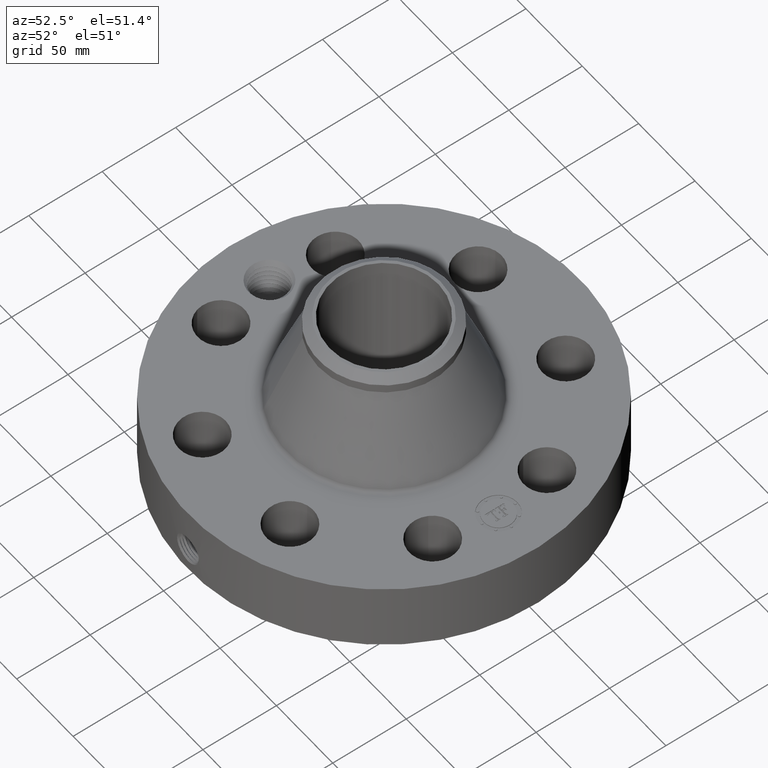
[diagram: clean part render]
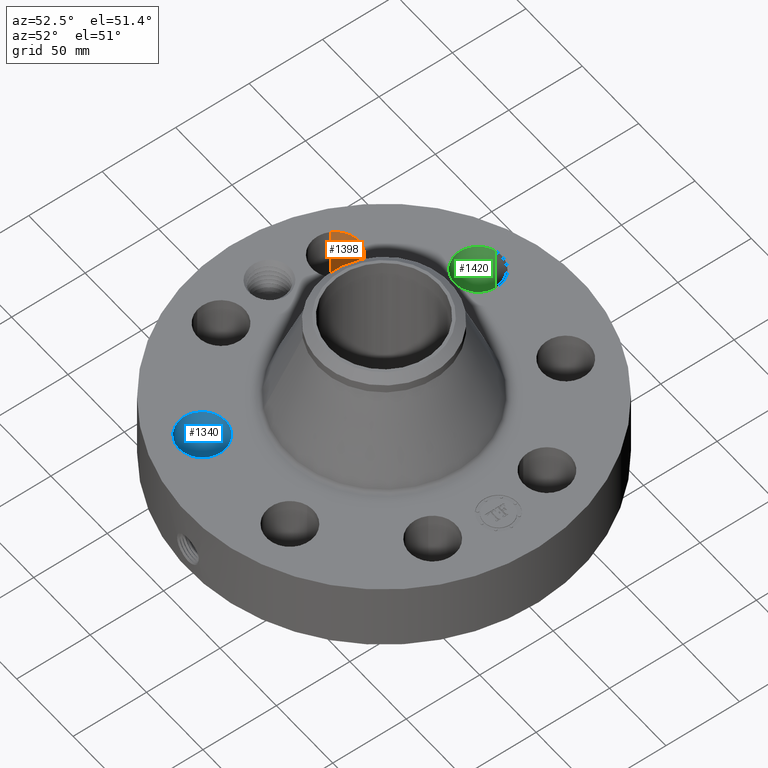
[diagram: same view with three faces highlighted in distinct colors, each labeled with its STEP entity id]
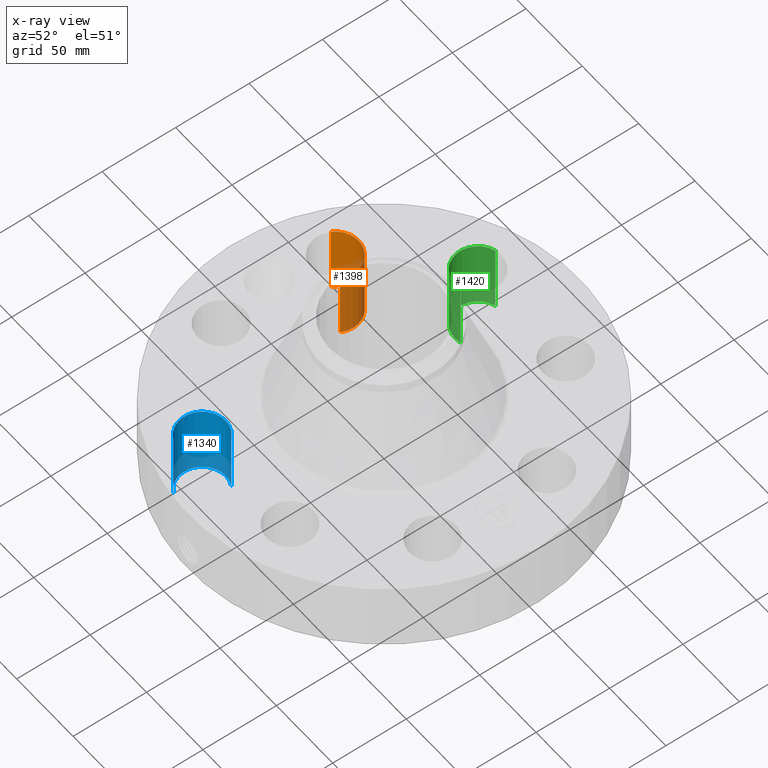
[diagram: x-ray of the same camera — body ghosted, the three highlighted faces saturated]
A machine part, auxiliary view with three faces highlighted in distinct colors.
The next image is the same camera in x-ray (body ghosted, the three faces saturated) — at least one of them is partly hidden behind the body in this view.
Their STEP definitions:

[orange] entity #1398 — the highlighted cylindrical surface (edge-blend (fillet) strip) has radius 15.875 mm, axis along (-0, 0, -1).
#330=AXIS2_PLACEMENT_3D('Circle Axis2P3D',#328,#329,$) ;
#645=AXIS2_PLACEMENT_3D('Circle Axis2P3D',#643,#644,$) ;
#1373=AXIS2_PLACEMENT_3D('Cylinder Axis2P3D',#1370,#1371,#1372) ;
#323=CARTESIAN_POINT('Vertex',(-3.14702902888,1.23109276784,0.250000000001)) ;
#325=CARTESIAN_POINT('Vertex',(-4.24400723124,1.8303746911,0.250000000001)) ;
#328=CARTESIAN_POINT('Axis2P3D Location',(-3.69551813006,1.53073372947,0.250000000001)) ;
#643=CARTESIAN_POINT('Axis2P3D Location',(-3.69551813006,1.53073372947,2.13000000001)) ;
#647=CARTESIAN_POINT('Vertex',(-4.24400723124,1.8303746911,2.13000000001)) ;
#649=CARTESIAN_POINT('Vertex',(-3.14702902888,1.23109276784,2.13000000001)) ;
#1370=CARTESIAN_POINT('Axis2P3D Location',(-3.69551813006,1.53073372947,2.12606299213)) ;
#1375=CARTESIAN_POINT('Line Origine',(-3.14702902888,1.23109276784,1.19)) ;
#1380=CARTESIAN_POINT('Line Origine',(-4.24400723124,1.8303746911,1.19)) ;
#329=DIRECTION('Axis2P3D Direction',(0.,0.,-0.0393700787402)) ;
#644=DIRECTION('Axis2P3D Direction',(0.,0.,-0.0393700787402)) ;
#1371=DIRECTION('Axis2P3D Direction',(-0.,0.,-0.0393700787402)) ;
#1372=DIRECTION('Axis2P3D XDirection',(-0.0345504945626,0.0188750212049,0.)) ;
#1376=DIRECTION('Vector Direction',(0.,0.,-0.0393700787402)) ;
#1381=DIRECTION('Vector Direction',(0.,0.,-0.0393700787402)) ;
#1377=VECTOR('Line Direction',#1376,0.0393700787402) ;
#1382=VECTOR('Line Direction',#1381,0.0393700787402) ;
#1393=ORIENTED_EDGE('',*,*,#1384,.F.) ;
#1394=ORIENTED_EDGE('',*,*,#332,.T.) ;
#1395=ORIENTED_EDGE('',*,*,#1379,.T.) ;
#1396=ORIENTED_EDGE('',*,*,#651,.F.) ;
#1398=ADVANCED_FACE('PartBody',(#1397),#1374,.F.) ;
#331=CIRCLE('generated circle',#330,0.625000000002) ;
#646=CIRCLE('generated circle',#645,0.625000000002) ;
#1374=CYLINDRICAL_SURFACE('generated cylinder',#1373,0.625000000002) ;
#332=EDGE_CURVE('',#326,#324,#331,.T.) ;
#651=EDGE_CURVE('',#648,#650,#646,.T.) ;
#1379=EDGE_CURVE('',#324,#650,#1378,.F.) ;
#1384=EDGE_CURVE('',#326,#648,#1383,.F.) ;
#1392=EDGE_LOOP('',(#1393,#1394,#1395,#1396)) ;
#1397=FACE_OUTER_BOUND('',#1392,.T.) ;
#1378=LINE('Line',#1375,#1377) ;
#1383=LINE('Line',#1380,#1382) ;
#324=VERTEX_POINT('',#323) ;
#326=VERTEX_POINT('',#325) ;
#648=VERTEX_POINT('',#647) ;
#650=VERTEX_POINT('',#649) ;

[blue] entity #1340 — the highlighted cylindrical surface (edge-blend (fillet) strip) has radius 15.875 mm, axis along (0, -0, -1).
#294=AXIS2_PLACEMENT_3D('Circle Axis2P3D',#292,#293,$) ;
#609=AXIS2_PLACEMENT_3D('Circle Axis2P3D',#607,#608,$) ;
#1315=AXIS2_PLACEMENT_3D('Cylinder Axis2P3D',#1312,#1313,#1314) ;
#287=CARTESIAN_POINT('Vertex',(-1.23109276784,-3.14702902888,0.250000000001)) ;
#289=CARTESIAN_POINT('Vertex',(-1.8303746911,-4.24400723124,0.250000000001)) ;
#292=CARTESIAN_POINT('Axis2P3D Location',(-1.53073372947,-3.69551813006,0.250000000001)) ;
#607=CARTESIAN_POINT('Axis2P3D Location',(-1.53073372947,-3.69551813006,2.13000000001)) ;
#611=CARTESIAN_POINT('Vertex',(-1.8303746911,-4.24400723124,2.13000000001)) ;
#613=CARTESIAN_POINT('Vertex',(-1.23109276784,-3.14702902888,2.13000000001)) ;
#1312=CARTESIAN_POINT('Axis2P3D Location',(-1.53073372947,-3.69551813006,2.12606299213)) ;
#1317=CARTESIAN_POINT('Line Origine',(-1.23109276784,-3.14702902888,1.19)) ;
#1322=CARTESIAN_POINT('Line Origine',(-1.8303746911,-4.24400723124,1.19)) ;
#293=DIRECTION('Axis2P3D Direction',(0.,0.,-0.0393700787402)) ;
#608=DIRECTION('Axis2P3D Direction',(0.,0.,-0.0393700787402)) ;
#1313=DIRECTION('Axis2P3D Direction',(0.,-0.,-0.0393700787402)) ;
#1314=DIRECTION('Axis2P3D XDirection',(-0.0188750212049,-0.0345504945626,0.)) ;
#1318=DIRECTION('Vector Direction',(0.,0.,-0.0393700787402)) ;
#1323=DIRECTION('Vector Direction',(0.,0.,-0.0393700787402)) ;
#1319=VECTOR('Line Direction',#1318,0.0393700787402) ;
#1324=VECTOR('Line Direction',#1323,0.0393700787402) ;
#1335=ORIENTED_EDGE('',*,*,#1326,.F.) ;
#1336=ORIENTED_EDGE('',*,*,#296,.T.) ;
#1337=ORIENTED_EDGE('',*,*,#1321,.T.) ;
#1338=ORIENTED_EDGE('',*,*,#615,.F.) ;
#1340=ADVANCED_FACE('PartBody',(#1339),#1316,.F.) ;
#295=CIRCLE('generated circle',#294,0.625000000002) ;
#610=CIRCLE('generated circle',#609,0.625000000002) ;
#1316=CYLINDRICAL_SURFACE('generated cylinder',#1315,0.625000000002) ;
#296=EDGE_CURVE('',#290,#288,#295,.T.) ;
#615=EDGE_CURVE('',#612,#614,#610,.T.) ;
#1321=EDGE_CURVE('',#288,#614,#1320,.F.) ;
#1326=EDGE_CURVE('',#290,#612,#1325,.F.) ;
#1334=EDGE_LOOP('',(#1335,#1336,#1337,#1338)) ;
#1339=FACE_OUTER_BOUND('',#1334,.T.) ;
#1320=LINE('Line',#1317,#1319) ;
#1325=LINE('Line',#1322,#1324) ;
#288=VERTEX_POINT('',#287) ;
#290=VERTEX_POINT('',#289) ;
#612=VERTEX_POINT('',#611) ;
#614=VERTEX_POINT('',#613) ;

[green] entity #1420 — the highlighted cylindrical surface (edge-blend (fillet) strip) has radius 15.875 mm, axis along (0, 0, -1).
#339=AXIS2_PLACEMENT_3D('Circle Axis2P3D',#337,#338,$) ;
#672=AXIS2_PLACEMENT_3D('Circle Axis2P3D',#670,#671,$) ;
#1402=AXIS2_PLACEMENT_3D('Cylinder Axis2P3D',#1399,#1400,#1401) ;
#337=CARTESIAN_POINT('Axis2P3D Location',(-1.53073372947,3.69551813006,0.250000000001)) ;
#341=CARTESIAN_POINT('Vertex',(-1.3547715225,3.09579961132,0.250000000001)) ;
#343=CARTESIAN_POINT('Vertex',(-1.70669593643,4.2952366488,0.250000000001)) ;
#665=CARTESIAN_POINT('Vertex',(-1.70669593643,4.2952366488,2.13000000001)) ;
#667=CARTESIAN_POINT('Vertex',(-1.3547715225,3.09579961132,2.13000000001)) ;
#670=CARTESIAN_POINT('Axis2P3D Location',(-1.53073372947,3.69551813006,2.13000000001)) ;
#1399=CARTESIAN_POINT('Axis2P3D Location',(-1.53073372947,3.69551813006,2.12606299213)) ;
#1404=CARTESIAN_POINT('Line Origine',(-1.3547715225,3.09579961132,1.19)) ;
#1409=CARTESIAN_POINT('Line Origine',(-1.70669593643,4.2952366488,1.19)) ;
#338=DIRECTION('Axis2P3D Direction',(0.,0.,-0.0393700787402)) ;
#671=DIRECTION('Axis2P3D Direction',(0.,0.,-0.0393700787402)) ;
#1400=DIRECTION('Axis2P3D Direction',(0.,0.,-0.0393700787402)) ;
#1401=DIRECTION('Axis2P3D XDirection',(-0.0110842335096,0.0377775444876,0.)) ;
#1405=DIRECTION('Vector Direction',(0.,0.,-0.0393700787402)) ;
#1410=DIRECTION('Vector Direction',(0.,0.,-0.0393700787402)) ;
#1406=VECTOR('Line Direction',#1405,0.0393700787402) ;
#1411=VECTOR('Line Direction',#1410,0.0393700787402) ;
#1415=ORIENTED_EDGE('',*,*,#1408,.F.) ;
#1416=ORIENTED_EDGE('',*,*,#345,.T.) ;
#1417=ORIENTED_EDGE('',*,*,#1413,.T.) ;
#1418=ORIENTED_EDGE('',*,*,#674,.F.) ;
#1420=ADVANCED_FACE('PartBody',(#1419),#1403,.F.) ;
#340=CIRCLE('generated circle',#339,0.625000000003) ;
#673=CIRCLE('generated circle',#672,0.625000000003) ;
#1403=CYLINDRICAL_SURFACE('generated cylinder',#1402,0.625000000003) ;
#345=EDGE_CURVE('',#342,#344,#340,.T.) ;
#674=EDGE_CURVE('',#668,#666,#673,.T.) ;
#1408=EDGE_CURVE('',#342,#668,#1407,.F.) ;
#1413=EDGE_CURVE('',#344,#666,#1412,.F.) ;
#1414=EDGE_LOOP('',(#1415,#1416,#1417,#1418)) ;
#1419=FACE_OUTER_BOUND('',#1414,.T.) ;
#1407=LINE('Line',#1404,#1406) ;
#1412=LINE('Line',#1409,#1411) ;
#342=VERTEX_POINT('',#341) ;
#344=VERTEX_POINT('',#343) ;
#666=VERTEX_POINT('',#665) ;
#668=VERTEX_POINT('',#667) ;